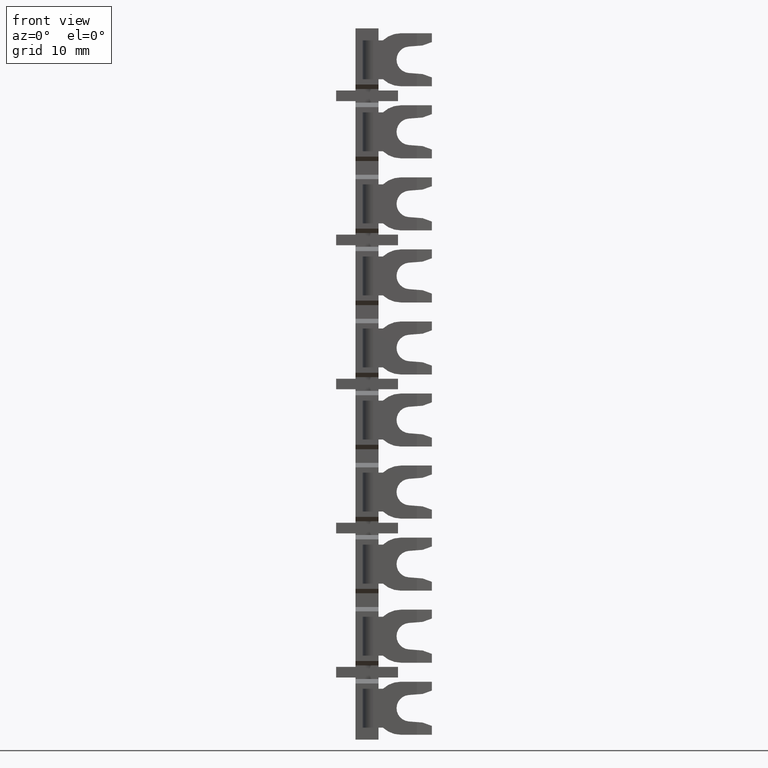
[diagram: clean part render]
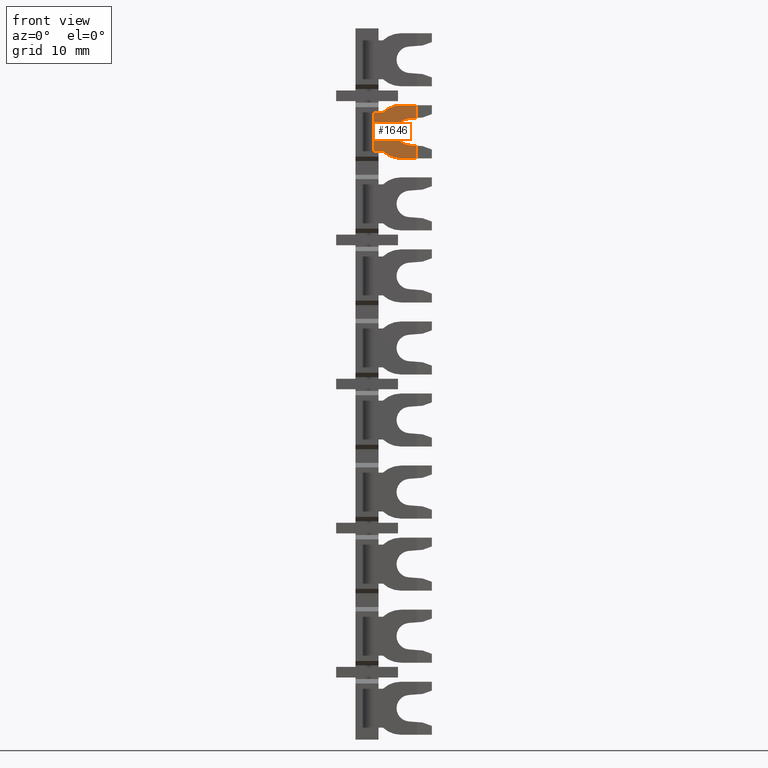
[diagram: same view with one face highlighted and labeled with its STEP entity id]
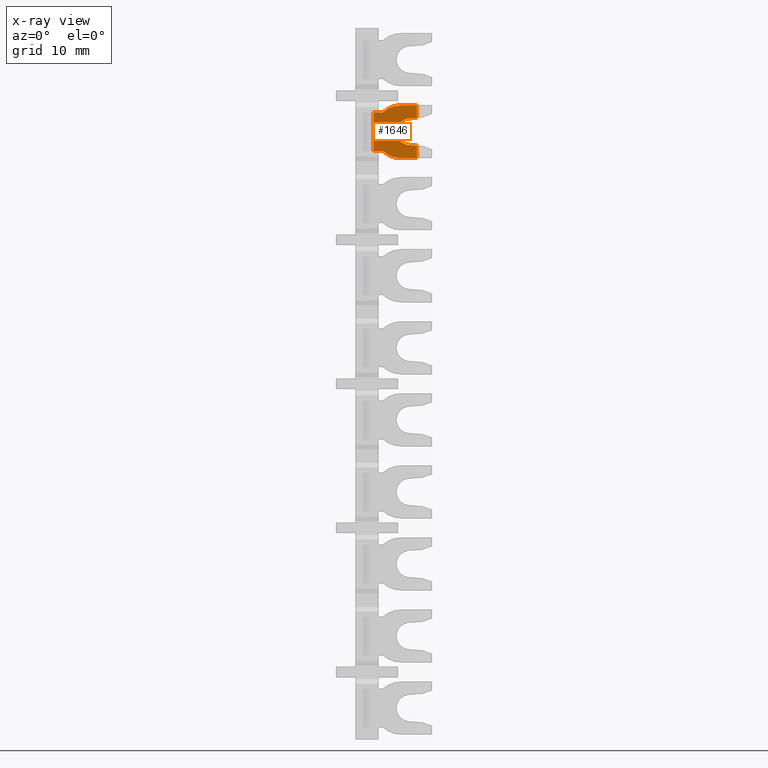
[diagram: x-ray of the same camera — body ghosted, the highlighted face saturated]
A machine part, front view. The second image highlights one B-rep face of the part: STEP entity #1646.
The next image is the same camera in x-ray: the body ghosted, the highlighted face saturated — about 0% of this face is hidden behind the body in this view.
In plain terms, the highlighted planar face has unit normal (-0, 1, 0).
Its self-contained STEP definition (entity closure, byte-faithful):
#782 = CARTESIAN_POINT ( 'NONE',  ( 1559.379892790780100, 1078.959529724810000, -2.533047465278560000 ) ) ;
#797 = CARTESIAN_POINT ( 'NONE',  ( 1558.465335063180000, 1078.959529724810000, -2.604565446209199800 ) ) ;
#827 = CARTESIAN_POINT ( 'NONE',  ( 1558.465335063180000, 1078.959529724810000, -5.595434553790900300 ) ) ;
#857 = CARTESIAN_POINT ( 'NONE',  ( 1554.445209356664900, 1078.959529724810000, -6.299999999999999800 ) ) ;
#869 = CARTESIAN_POINT ( 'NONE',  ( 1559.379892790780100, 1078.959529724810000, -1.100000000000060000 ) ) ;
#872 = CARTESIAN_POINT ( 'NONE',  ( 1559.379892790780100, 1078.959529724810000, -7.100000000000000500 ) ) ;
#877 = CARTESIAN_POINT ( 'NONE',  ( 1555.541669528729900, 1078.959529724810000, -6.299999999999999800 ) ) ;
#893 = CARTESIAN_POINT ( 'NONE',  ( 1555.541669526664900, 1078.959529724810000, -1.900000001912350000 ) ) ;
#896 = CARTESIAN_POINT ( 'NONE',  ( 1554.445209356664900, 1078.959529724810000, -1.900000001912304900 ) ) ;
#903 = CARTESIAN_POINT ( 'NONE',  ( 1559.379892790780100, 1078.959529724810000, -5.666952534721540100 ) ) ;
#911 = CARTESIAN_POINT ( 'NONE',  ( 1557.581277334165000, 1078.959529724810000, -1.100000000000052000 ) ) ;
#916 = CARTESIAN_POINT ( 'NONE',  ( 1557.581277334165000, 1078.959529724810000, -7.100000000000000500 ) ) ;
#1646 = ADVANCED_FACE ( 'NONE', ( #14330 ), #14343, .F. ) ;
#2059 = EDGE_LOOP ( 'NONE', ( #7880, #7954, #7969, #7868, #7902, #7956, #7961, #7869, #7860, #7899, #7895, #7910 ) ) ;
#2564 = VERTEX_POINT ( 'NONE', #782 ) ;
#2582 = VERTEX_POINT ( 'NONE', #797 ) ;
#2640 = VERTEX_POINT ( 'NONE', #827 ) ;
#2650 = VERTEX_POINT ( 'NONE', #869 ) ;
#2652 = VERTEX_POINT ( 'NONE', #903 ) ;
#2654 = VERTEX_POINT ( 'NONE', #916 ) ;
#2655 = VERTEX_POINT ( 'NONE', #896 ) ;
#2662 = VERTEX_POINT ( 'NONE', #857 ) ;
#2670 = VERTEX_POINT ( 'NONE', #877 ) ;
#2681 = VERTEX_POINT ( 'NONE', #893 ) ;
#2683 = VERTEX_POINT ( 'NONE', #872 ) ;
#2688 = VERTEX_POINT ( 'NONE', #911 ) ;
#3678 = LINE ( 'NONE', #3700, #8225 ) ;
#3686 = DIRECTION ( 'NONE',  ( -1.151733797579403900E-030, -2.030817431070695200E-031, 1.000000000000000000 ) ) ;
#3700 = CARTESIAN_POINT ( 'NONE',  ( 1559.379892790780100, 1078.959529724810000, -4.100000000000054700 ) ) ;
#3742 = LINE ( 'NONE', #3745, #8233 ) ;
#3745 = CARTESIAN_POINT ( 'NONE',  ( 1555.541669528729900, 1078.959529724810000, -6.299999999999999800 ) ) ;
#3746 = DIRECTION ( 'NONE',  ( -1.000000000000000000, -2.775557561562889800E-017, 3.467368427397270700E-015 ) ) ;
#3765 = DIRECTION ( 'NONE',  ( 1.000000000000000000, 2.775557561562889800E-017, -3.591277247021385000E-015 ) ) ;
#3771 = LINE ( 'NONE', #3802, #8248 ) ;
#3802 = CARTESIAN_POINT ( 'NONE',  ( 1557.581277334165000, 1078.959529724810000, -1.100000000000052000 ) ) ;
#3812 = DIRECTION ( 'NONE',  ( 0.0000000000000000000, 0.0000000000000000000, -1.000000000000000000 ) ) ;
#3814 = DIRECTION ( 'NONE',  ( 0.9969563691939024000, 1.510425331877653800E-017, -0.07796151565811956800 ) ) ;
#3817 = CARTESIAN_POINT ( 'NONE',  ( 1557.581277334165000, 1078.959529724810000, -4.100000000000054700 ) ) ;
#3829 = LINE ( 'NONE', #3834, #8280 ) ;
#3834 = CARTESIAN_POINT ( 'NONE',  ( 1561.081277336664900, 1078.959529724810000, -5.799999999999999800 ) ) ;
#3840 = DIRECTION ( 'NONE',  ( -5.551115123125880100E-017, 1.000000000000000000, -2.891205793294680300E-016 ) ) ;
#3851 = DIRECTION ( 'NONE',  ( 5.551115123125779600E-017, -1.000000000000000000, -1.941337383942334800E-031 ) ) ;
#3870 = DIRECTION ( 'NONE',  ( 0.0000000000000000000, 0.0000000000000000000, 1.000000000000000000 ) ) ;
#3886 = CARTESIAN_POINT ( 'NONE',  ( 1554.445209356664900, 1078.959529724810000, -1.900000001912304900 ) ) ;
#3888 = CARTESIAN_POINT ( 'NONE',  ( 1558.582277336664900, 1078.959529724810000, -4.100000000000054700 ) ) ;
#3891 = LINE ( 'NONE', #3886, #8269 ) ;
#3892 = DIRECTION ( 'NONE',  ( -3.503727310284305400E-015, -1.611929227617499900E-016, -1.000000000000000000 ) ) ;
#4891 = AXIS2_PLACEMENT_3D ( 'NONE', #14325, #14302, #14298 ) ;
#7860 = ORIENTED_EDGE ( 'NONE', *, *, #9015, .F. ) ;
#7868 = ORIENTED_EDGE ( 'NONE', *, *, #8982, .F. ) ;
#7869 = ORIENTED_EDGE ( 'NONE', *, *, #8963, .F. ) ;
#7880 = ORIENTED_EDGE ( 'NONE', *, *, #9038, .F. ) ;
#7895 = ORIENTED_EDGE ( 'NONE', *, *, #8936, .F. ) ;
#7899 = ORIENTED_EDGE ( 'NONE', *, *, #8980, .T. ) ;
#7902 = ORIENTED_EDGE ( 'NONE', *, *, #9014, .F. ) ;
#7910 = ORIENTED_EDGE ( 'NONE', *, *, #9005, .F. ) ;
#7954 = ORIENTED_EDGE ( 'NONE', *, *, #9037, .T. ) ;
#7956 = ORIENTED_EDGE ( 'NONE', *, *, #8925, .T. ) ;
#7961 = ORIENTED_EDGE ( 'NONE', *, *, #8952, .F. ) ;
#7969 = ORIENTED_EDGE ( 'NONE', *, *, #8968, .F. ) ;
#8225 = VECTOR ( 'NONE', #3686, 1000.000000000000000 ) ;
#8233 = VECTOR ( 'NONE', #3746, 1000.000000000000000 ) ;
#8248 = VECTOR ( 'NONE', #3765, 1000.000000000000000 ) ;
#8269 = VECTOR ( 'NONE', #3892, 1000.000000000000000 ) ;
#8271 = CIRCLE ( 'NONE', #8284, 3.000000000000000000 ) ;
#8280 = VECTOR ( 'NONE', #3814, 1000.000000000000100 ) ;
#8284 = AXIS2_PLACEMENT_3D ( 'NONE', #3817, #3840, #3812 ) ;
#8300 = CIRCLE ( 'NONE', #8301, 1.500000000000000000 ) ;
#8301 = AXIS2_PLACEMENT_3D ( 'NONE', #3888, #3851, #3870 ) ;
#8318 = CIRCLE ( 'NONE', #8325, 3.000000000000000000 ) ;
#8325 = AXIS2_PLACEMENT_3D ( 'NONE', #12826, #12832, #12792 ) ;
#8343 = VECTOR ( 'NONE', #12868, 1000.000000000000000 ) ;
#8363 = VECTOR ( 'NONE', #13019, 1000.000000000000000 ) ;
#8379 = VECTOR ( 'NONE', #12902, 1000.000000000000000 ) ;
#8383 = VECTOR ( 'NONE', #12948, 1000.000000000000000 ) ;
#8925 = EDGE_CURVE ( 'NONE', #2564, #2650, #3678, .T. ) ;
#8936 = EDGE_CURVE ( 'NONE', #2670, #2662, #3742, .T. ) ;
#8952 = EDGE_CURVE ( 'NONE', #2688, #2650, #3771, .T. ) ;
#8963 = EDGE_CURVE ( 'NONE', #2681, #2688, #8271, .T. ) ;
#8968 = EDGE_CURVE ( 'NONE', #2640, #2652, #3829, .T. ) ;
#8980 = EDGE_CURVE ( 'NONE', #2655, #2662, #3891, .T. ) ;
#8982 = EDGE_CURVE ( 'NONE', #2582, #2640, #8300, .T. ) ;
#9005 = EDGE_CURVE ( 'NONE', #2654, #2670, #8318, .T. ) ;
#9014 = EDGE_CURVE ( 'NONE', #2564, #2582, #12870, .T. ) ;
#9015 = EDGE_CURVE ( 'NONE', #2655, #2681, #12867, .T. ) ;
#9037 = EDGE_CURVE ( 'NONE', #2683, #2652, #13009, .T. ) ;
#9038 = EDGE_CURVE ( 'NONE', #2683, #2654, #12995, .T. ) ;
#12792 = DIRECTION ( 'NONE',  ( 0.0000000000000000000, 0.0000000000000000000, -1.000000000000000000 ) ) ;
#12826 = CARTESIAN_POINT ( 'NONE',  ( 1557.581277334165000, 1078.959529724810000, -4.100000000000054700 ) ) ;
#12832 = DIRECTION ( 'NONE',  ( -5.551115123125880100E-017, 1.000000000000000000, -2.891205793294680300E-016 ) ) ;
#12867 = LINE ( 'NONE', #12927, #8343 ) ;
#12868 = DIRECTION ( 'NONE',  ( 1.000000000000000000, 2.775557561562884600E-017, -3.801879952725660500E-015 ) ) ;
#12870 = LINE ( 'NONE', #12886, #8379 ) ;
#12886 = CARTESIAN_POINT ( 'NONE',  ( 1561.081277336664900, 1078.959529724810000, -2.400000000000055000 ) ) ;
#12902 = DIRECTION ( 'NONE',  ( -0.9969563691939028500, -4.023794246251209300E-017, -0.07796151565811380900 ) ) ;
#12927 = CARTESIAN_POINT ( 'NONE',  ( 1555.541669526664900, 1078.959529724810000, -1.900000001912350000 ) ) ;
#12948 = DIRECTION ( 'NONE',  ( -1.151733797579403900E-030, -2.030817431070695200E-031, 1.000000000000000000 ) ) ;
#12989 = CARTESIAN_POINT ( 'NONE',  ( 1559.379892790780100, 1078.959529724810000, -4.100000000000054700 ) ) ;
#12995 = LINE ( 'NONE', #12996, #8363 ) ;
#12996 = CARTESIAN_POINT ( 'NONE',  ( 1557.581277334165000, 1078.959529724810000, -7.100000000000000500 ) ) ;
#13009 = LINE ( 'NONE', #12989, #8383 ) ;
#13019 = DIRECTION ( 'NONE',  ( -1.000000000000000000, -2.775557561562889800E-017, 3.591277247021385000E-015 ) ) ;
#14298 = DIRECTION ( 'NONE',  ( -3.658395450330995500E-015, 0.0000000000000000000, -1.000000000000000000 ) ) ;
#14302 = DIRECTION ( 'NONE',  ( -5.551115123125779600E-017, 1.000000000000000000, 2.030817431070693400E-031 ) ) ;
#14325 = CARTESIAN_POINT ( 'NONE',  ( 1557.581277334165000, 1078.959529724810000, -4.100000000000054700 ) ) ;
#14330 = FACE_OUTER_BOUND ( 'NONE', #2059, .T. ) ;
#14343 = PLANE ( 'NONE',  #4891 ) ;